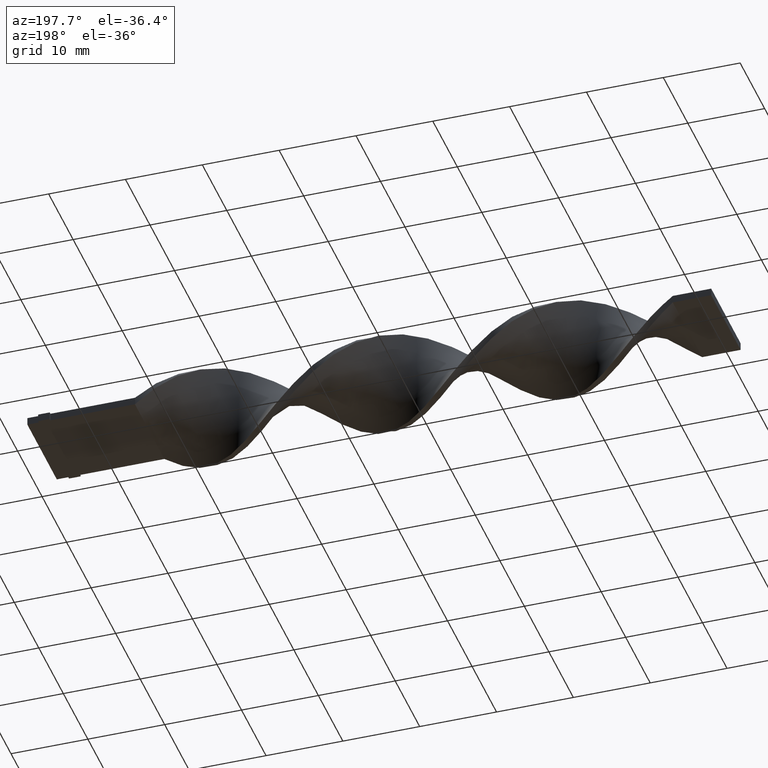
[diagram: clean part render]
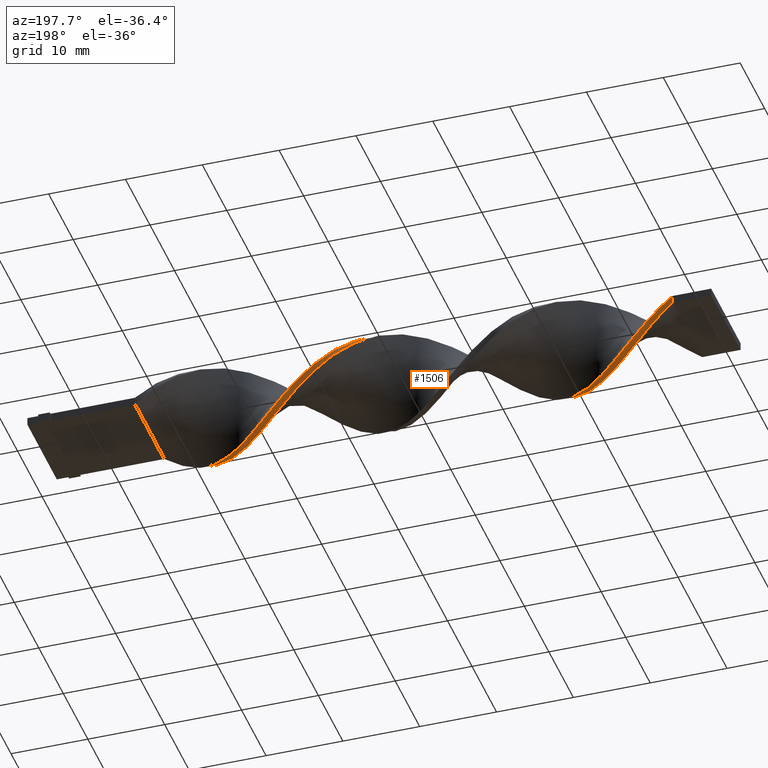
[diagram: same view with one face highlighted and labeled with its STEP entity id]
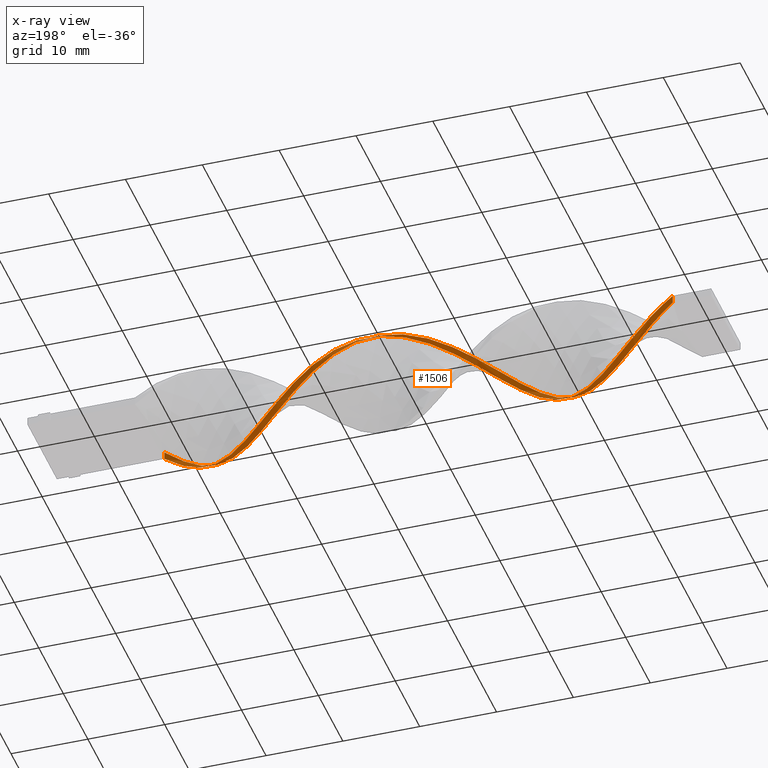
[diagram: x-ray of the same camera — body ghosted, the highlighted face saturated]
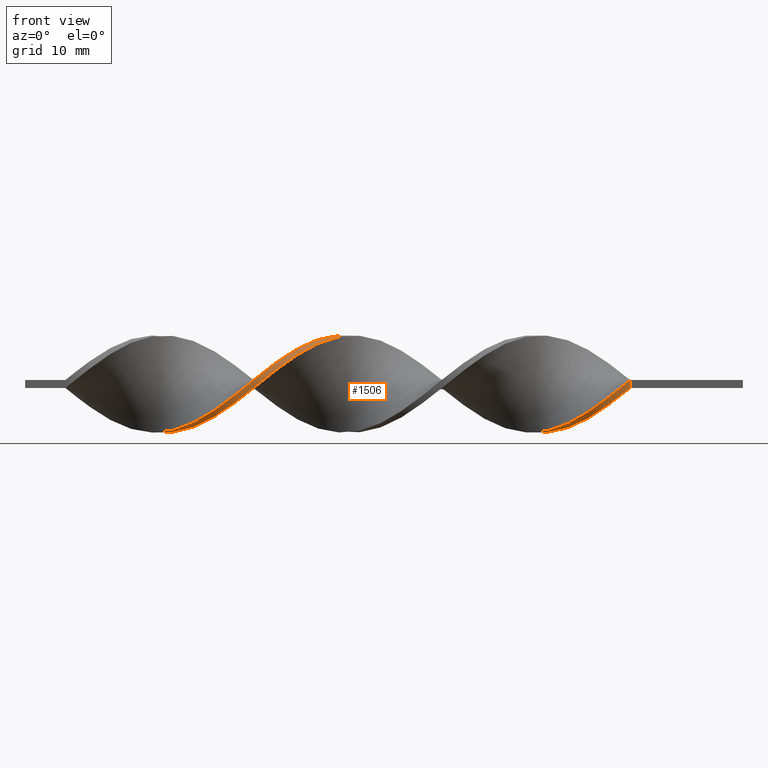
[diagram: same view with one face highlighted and labeled with its STEP entity id]
A machine part, auxiliary view. The second image highlights one B-rep face of the part: STEP entity #1506.
The next image is the same camera in x-ray: the body ghosted, the highlighted face saturated — about 3% of this face is hidden behind the body in this view.
A second angle (front view) of the same face is appended — the face is thin or edge-on in the first view.
In plain terms, the highlighted face is a freeform B-spline surface patch.
Its self-contained STEP definition (entity closure, byte-faithful):
#3 = CARTESIAN_POINT ( 'NONE',  ( -24.76923076923076650, -1.219574518580968547, -5.895984904460662257 ) ) ;
#9 = EDGE_LOOP ( 'NONE', ( #282, #1253, #107, #892 ) ) ;
#27 = CARTESIAN_POINT ( 'NONE',  ( -47.20512820512820440, 1.935476698729087230, 5.747901747727229171 ) ) ;
#34 = CARTESIAN_POINT ( 'NONE',  ( -26.56410256410256210, 0.2268656444829082741, -6.016521584715985860 ) ) ;
#45 = CARTESIAN_POINT ( 'NONE',  ( -25.66666666666666785, -0.5036723384328438691, -6.044068061194097119 ) ) ;
#49 = CARTESIAN_POINT ( 'NONE',  ( -49.00000000000000711, -0.5036723384328423148, 6.044068061194097119 ) ) ;
#55 = CARTESIAN_POINT ( 'NONE',  ( -61.56410256410256920, -6.060710991611131249, -0.2285318993335631599 ) ) ;
#59 = CARTESIAN_POINT ( 'NONE',  ( -21.17948717948717885, -2.996896547440109693, -5.221935568727515964 ) ) ;
#67 = CARTESIAN_POINT ( 'NONE',  ( -37.33333333333332860, 5.999999999999998224, 0.4999999999999992784 ) ) ;
#72 = CARTESIAN_POINT ( 'NONE',  ( -40.92307692307691980, 5.080374567897373517, 3.231067045089215828 ) ) ;
#75 = CARTESIAN_POINT ( 'NONE',  ( -43.61538461538461320, 3.630954320453864792, 4.858046446425391629 ) ) ;
#82 = CARTESIAN_POINT ( 'NONE',  ( -24.76923076923076650, -1.219574518580968547, -5.895984904460662257 ) ) ;
#86 = CARTESIAN_POINT ( 'NONE',  ( -41.82051282051281760, 4.688051999358552990, 3.847936200635249993 ) ) ;
#89 = CARTESIAN_POINT ( 'NONE',  ( -75.02564102564102200, 2.595137443597917759, -5.432795012591221884 ) ) ;
#92 = CARTESIAN_POINT ( 'NONE',  ( -38.23076923076922640, 6.060710991611128584, 0.2285318993335618554 ) ) ;
#94 = CARTESIAN_POINT ( 'NONE',  ( -75.92307692307693401, 2.362838774426346156, -5.585824691029640299 ) ) ;
#98 = CARTESIAN_POINT ( 'NONE',  ( -82.20512820512820440, 5.945308736700089192, -0.9504230770123227590 ) ) ;
#101 = CARTESIAN_POINT ( 'NONE',  ( -57.97435897435897090, -5.472697136436198484, 2.614197889543184772 ) ) ;
#106 = CARTESIAN_POINT ( 'NONE',  ( -50.79487179487178850, -1.935476698729088785, 5.747901747727230060 ) ) ;
#107 = ORIENTED_EDGE ( 'NONE', *, *, #1176, .F. ) ;
#114 = CARTESIAN_POINT ( 'NONE',  ( -46.30769230769230660, 2.595137443597920424, 5.432795012591220107 ) ) ;
#118 = CARTESIAN_POINT ( 'NONE',  ( -21.17948717948717885, -3.819880413333765823, -4.653870821996360263 ) ) ;
#121 = CARTESIAN_POINT ( 'NONE',  ( -49.89743589743589069, -0.2268656444829090235, 6.016521584715984972 ) ) ;
#123 = CARTESIAN_POINT ( 'NONE',  ( -66.05128205128204399, -4.159503159906210890, -4.352991323530321033 ) ) ;
#126 = CARTESIAN_POINT ( 'NONE',  ( -83.10256410256410220, 5.939289008388867863, -1.228531899333566102 ) ) ;
#132 = CARTESIAN_POINT ( 'NONE',  ( -71.43589743589743080, -1.219574518580968547, -5.895984904460662257 ) ) ;
#138 = CARTESIAN_POINT ( 'NONE',  ( -84.00000000000000000, 5.999999999999998224, 0.4999999999999992784 ) ) ;
#142 = EDGE_CURVE ( 'NONE', #1331, #1131, #1358, .T. ) ;
#145 = CARTESIAN_POINT ( 'NONE',  ( -22.97435897435897090, -2.595137443597924420, -5.432795012591220107 ) ) ;
#152 = CARTESIAN_POINT ( 'NONE',  ( -28.35897435897435770, 1.660121200912503259, -5.787399899633756561 ) ) ;
#157 = CARTESIAN_POINT ( 'NONE',  ( -46.30769230769230660, 1.660121200912505923, 5.787399899633756561 ) ) ;
#162 = CARTESIAN_POINT ( 'NONE',  ( -13.99999999999999822, -6.000000000000001776, 0.5000000000000000000 ) ) ;
#165 = CARTESIAN_POINT ( 'NONE',  ( -40.92307692307691980, 5.080374567897373517, 3.231067045089215828 ) ) ;
#167 = VERTEX_POINT ( 'NONE', #451 ) ;
#172 = CARTESIAN_POINT ( 'NONE',  ( -20.28205128205128460, -4.384962638200775586, -4.190053366537506818 ) ) ;
#176 = FACE_OUTER_BOUND ( 'NONE', #9, .T. ) ;
#179 = CARTESIAN_POINT ( 'NONE',  ( -13.99999999999999645, -6.000000000000001776, 0.5000000000000000000 ) ) ;
#183 = CARTESIAN_POINT ( 'NONE',  ( -78.61538461538461320, 4.159503159906205561, -4.352991323530322809 ) ) ;
#184 = CARTESIAN_POINT ( 'NONE',  ( -27.46153846153846345, 1.935476698729087008, -5.747901747727229171 ) ) ;
#186 = CARTESIAN_POINT ( 'NONE',  ( -29.25641025641025905, 3.254798188466751618, -5.117688277455213708 ) ) ;
#188 = CARTESIAN_POINT ( 'NONE',  ( -84.00000000000000000, 5.999999999999998224, -0.5000000000000007772 ) ) ;
#191 = CARTESIAN_POINT ( 'NONE',  ( -73.23076923076924061, 0.2268656444829082741, -6.016521584715985860 ) ) ;
#199 = CARTESIAN_POINT ( 'NONE',  ( -80.41025641025640880, 5.080374567897372629, -3.231067045089216716 ) ) ;
#205 = CARTESIAN_POINT ( 'NONE',  ( -58.87179487179486870, -5.945308736700091856, 0.9504230770123260896 ) ) ;
#207 = CARTESIAN_POINT ( 'NONE',  ( -23.87179487179487580, -1.935476698729091671, -5.747901747727228283 ) ) ;
#211 = CARTESIAN_POINT ( 'NONE',  ( -34.64102564102564230, 5.829906481789050687, -1.672314254691079638 ) ) ;
#215 = CARTESIAN_POINT ( 'NONE',  ( -54.38461538461538680, -4.384962638200770257, 4.190053366537511259 ) ) ;
#221 = CARTESIAN_POINT ( 'NONE',  ( -71.43589743589743080, -0.2268656444829144359, -6.016521584715985860 ) ) ;
#235 = CARTESIAN_POINT ( 'NONE',  ( -40.02564102564102200, 5.829906481789052464, 1.672314254691075419 ) ) ;
#239 = CARTESIAN_POINT ( 'NONE',  ( -14.89743589743589602, -6.060710991611131249, -0.2285318993335631599 ) ) ;
#241 = CARTESIAN_POINT ( 'NONE',  ( -47.20512820512820440, 1.935476698729087452, 5.747901747727229171 ) ) ;
#244 = CARTESIAN_POINT ( 'NONE',  ( -84.00000000000000000, 5.999999999999998224, 0.4999999999999992784 ) ) ;
#247 = CARTESIAN_POINT ( 'NONE',  ( -39.12820512820512420, 5.945308736700090080, 0.9504230770123185401 ) ) ;
#250 = CARTESIAN_POINT ( 'NONE',  ( -64.25641025641024839, -5.545097739941144965, -2.345611019436005584 ) ) ;
#253 = CARTESIAN_POINT ( 'NONE',  ( -54.38461538461538680, -4.384962638200771146, 4.190053366537511259 ) ) ;
#257 = CARTESIAN_POINT ( 'NONE',  ( -72.33333333333332860, -0.5036723384328438691, -6.044068061194097119 ) ) ;
#268 = CARTESIAN_POINT ( 'NONE',  ( -84.00000000000000000, 5.999999999999998224, -0.5000000000000007772 ) ) ;
#273 = CARTESIAN_POINT ( 'NONE',  ( -54.38461538461538680, -3.630954320453861683, 4.858046446425396070 ) ) ;
#279 = CARTESIAN_POINT ( 'NONE',  ( -37.33333333333332860, 5.999999999999998224, -0.5000000000000007772 ) ) ;
#281 = CARTESIAN_POINT ( 'NONE',  ( -40.02564102564102200, 5.472697136436196708, 2.614197889543179887 ) ) ;
#282 = ORIENTED_EDGE ( 'NONE', *, *, #142, .F. ) ;
#289 = CARTESIAN_POINT ( 'NONE',  ( -29.25641025641025905, 2.362838774426346156, -5.585824691029640299 ) ) ;
#308 = CARTESIAN_POINT ( 'NONE',  ( -20.28205128205128460, -3.630954320453867457, -4.858046446425393405 ) ) ;
#310 = CARTESIAN_POINT ( 'NONE',  ( -39.12820512820512420, 5.705993072412532285, 1.921364894438370552 ) ) ;
#312 = CARTESIAN_POINT ( 'NONE',  ( -19.38461538461538325, -4.822625818147006527, -3.604480575359219952 ) ) ;
#315 = CARTESIAN_POINT ( 'NONE',  ( -71.43589743589743080, -1.219574518580968547, -5.895984904460662257 ) ) ;
#317 = CARTESIAN_POINT ( 'NONE',  ( -31.05128205128205465, 4.384962638200770257, -4.190053366537507706 ) ) ;
#328 = CARTESIAN_POINT ( 'NONE',  ( -22.97435897435897090, -1.660121200912509698, -5.787399899633756561 ) ) ;
#336 = CARTESIAN_POINT ( 'NONE',  ( -50.79487179487178850, -1.935476698729089007, 5.747901747727230060 ) ) ;
#348 = CARTESIAN_POINT ( 'NONE',  ( -31.05128205128205465, 3.630954320453861239, -4.858046446425394294 ) ) ;
#351 = CARTESIAN_POINT ( 'NONE',  ( -69.64102564102564941, -1.660121200912509698, -5.787399899633756561 ) ) ;
#355 = CARTESIAN_POINT ( 'NONE',  ( -36.43589743589743790, 5.939289008388867863, -1.228531899333566102 ) ) ;
#360 = CARTESIAN_POINT ( 'NONE',  ( -60.66666666666666430, -6.000000000000001776, -0.5000000000000000000 ) ) ;
#362 = CARTESIAN_POINT ( 'NONE',  ( -34.64102564102564230, 5.472697136436194931, -2.614197889543184328 ) ) ;
#365 = CARTESIAN_POINT ( 'NONE',  ( -74.12820512820510999, 1.935476698729087008, -5.747901747727229171 ) ) ;
#366 = CARTESIAN_POINT ( 'NONE',  ( -44.51282051282051100, 3.819880413333761826, 4.653870821996360263 ) ) ;
#368 = CARTESIAN_POINT ( 'NONE',  ( -74.12820512820510999, 0.9574036273986619161, -5.988975108237873712 ) ) ;
#372 = CARTESIAN_POINT ( 'NONE',  ( -56.17948717948717530, -5.260288998093236579, 3.018907784180935749 ) ) ;
#382 = CARTESIAN_POINT ( 'NONE',  ( -75.92307692307691980, 2.362838774426345712, -5.585824691029639411 ) ) ;
#394 = CARTESIAN_POINT ( 'NONE',  ( -57.97435897435897090, -5.472697136436198484, 2.614197889543184772 ) ) ;
#402 = CARTESIAN_POINT ( 'NONE',  ( -43.61538461538461320, 4.384962638200772034, 4.190053366537505042 ) ) ;
#410 = CARTESIAN_POINT ( 'NONE',  ( -16.69230769230769695, -5.829906481789053352, -1.672314254691077640 ) ) ;
#413 = CARTESIAN_POINT ( 'NONE',  ( -31.94871794871794535, 4.822625818147001198, -3.604480575359222172 ) ) ;
#423 = CARTESIAN_POINT ( 'NONE',  ( -28.35897435897435770, 2.595137443597917759, -5.432795012591221884 ) ) ;
#432 = CARTESIAN_POINT ( 'NONE',  ( -35.53846153846153300, 5.945308736700089192, -0.9504230770123227590 ) ) ;
#440 = CARTESIAN_POINT ( 'NONE',  ( -45.41025641025640880, 2.362838774426350152, 5.585824691029637634 ) ) ;
#442 = CARTESIAN_POINT ( 'NONE',  ( -18.48717948717948545, -4.688051999358555655, -3.847936200635250437 ) ) ;
#448 = CARTESIAN_POINT ( 'NONE',  ( -81.30769230769233502, 5.472697136436194931, -2.614197889543184328 ) ) ;
#449 = CARTESIAN_POINT ( 'NONE',  ( -29.25641025641025905, 3.254798188466751174, -5.117688277455213708 ) ) ;
#451 = CARTESIAN_POINT ( 'NONE',  ( -84.00000000000000000, 5.999999999999998224, 0.4999999999999992784 ) ) ;
#452 = CARTESIAN_POINT ( 'NONE',  ( -72.33333333333332860, 0.5036723384328392061, -6.044068061194097119 ) ) ;
#454 = CARTESIAN_POINT ( 'NONE',  ( -52.58974358974359120, -2.362838774426347488, 5.585824691029640299 ) ) ;
#460 = CARTESIAN_POINT ( 'NONE',  ( -49.00000000000000000, -0.5036723384328423148, 6.044068061194097119 ) ) ;
#463 = CARTESIAN_POINT ( 'NONE',  ( -76.82051282051281760, 3.819880413333760494, -4.653870821996361151 ) ) ;
#465 = CARTESIAN_POINT ( 'NONE',  ( -57.07692307692307310, -5.080374567897375293, 3.231067045089219825 ) ) ;
#471 = CARTESIAN_POINT ( 'NONE',  ( -72.33333333333332860, 0.5036723384328392061, -6.044068061194097119 ) ) ;
#474 = CARTESIAN_POINT ( 'NONE',  ( -62.46153846153845990, -5.705993072412535838, -1.921364894438372550 ) ) ;
#476 = CARTESIAN_POINT ( 'NONE',  ( -53.48717948717948900, -2.996896547440107472, 5.221935568727517740 ) ) ;
#488 = CARTESIAN_POINT ( 'NONE',  ( -66.94871794871794179, -3.630954320453867457, -4.858046446425393405 ) ) ;
#497 = B_SPLINE_CURVE_WITH_KNOTS ( 'NONE', 3,
 ( #138, #1124, #1375, #268 ),
 .UNSPECIFIED., .F., .F.,
 ( 4, 4 ),
 ( 0.000000000000000000, 1.000000000000000000 ),
 .UNSPECIFIED. ) ;
#499 = CARTESIAN_POINT ( 'NONE',  ( -40.92307692307691980, 5.545097739941142301, 2.345611019436005584 ) ) ;
#506 = CARTESIAN_POINT ( 'NONE',  ( -59.76923076923076650, -5.939289008388871416, 1.228531899333566768 ) ) ;
#526 = CARTESIAN_POINT ( 'NONE',  ( -58.87179487179486870, -5.705993072412533174, 1.921364894438377879 ) ) ;
#529 = CARTESIAN_POINT ( 'NONE',  ( -13.99999999999999645, -6.000000000000001776, 0.5000000000000000000 ) ) ;
#533 = CARTESIAN_POINT ( 'NONE',  ( -62.46153846153845990, -5.945308736700092744, -0.9504230770123205385 ) ) ;
#536 = CARTESIAN_POINT ( 'NONE',  ( -22.07692307692308376, -2.362838774426351041, -5.585824691029640299 ) ) ;
#542 = CARTESIAN_POINT ( 'NONE',  ( -33.74358974358974450, 5.080374567897372629, -3.231067045089216716 ) ) ;
#543 =( BOUNDED_CURVE ( )  B_SPLINE_CURVE ( 2, ( #179, #1432, #954, #692, #1186, #1442, #312, #1071, #1572, #1449, #1332, #207, #82, #586, #1532, #746, #1361, #615, #1227, #348, #1081, #1476, #1106, #362, #724, #355, #733, #92, #1218, #235, #1608, #1490, #858, #1368, #964, #1242, #114, #241, #753, #1097, #121, #1583, #596, #454, #476, #606, #1460, #1592, #465, #101, #982, #506, #1496, #1009, #1146, #1500, #250, #1395, #770, #1275, #1382, #1119, #1138, #1014, #132, #257, #1023, #368, #908, #382, #878, #764, #1000, #1132, #1254, #1522, #1265, #126, #1389 ),
 .UNSPECIFIED., .F., .T. ) 
 B_SPLINE_CURVE_WITH_KNOTS ( ( 3, 2, 2, 2, 2, 2, 2, 2, 2, 2, 2, 2, 2, 2, 2, 2, 2, 2, 2, 2, 2, 2, 2, 2, 2, 2, 2, 2, 2, 2, 2, 2, 2, 2, 2, 2, 2, 2, 2, 3 ),
 ( 0.000000000000000000, 0.01923076923076923184, 0.03846153846153846367, 0.05769230769230768857, 0.07692307692307692735, 0.09615384615384615918, 0.1153846153846153771, 0.1346153846153846090, 0.1538461538461538547, 0.1730769230769230449, 0.1923076923076923184, 0.2115384615384615363, 0.2307692307692307543, 0.2500000000000000000, 0.2692307692307692180, 0.2884615384615384359, 0.3076923076923077094, 0.3269230769230769273, 0.3461538461538460898, 0.3653846153846153633, 0.3846153846153846367, 0.4038461538461539102, 0.4230769230769230727, 0.4423076923076922906, 0.4615384615384615086, 0.4807692307692307820, 0.5000000000000000000, 0.5192307692307692735, 0.5384615384615384359, 0.5576923076923077094, 0.5769230769230768718, 0.5961538461538461453, 0.6153846153846154188, 0.6346153846153845812, 0.6538461538461538547, 0.6730769230769230171, 0.6923076923076921796, 0.7115384615384615641, 0.7307692307692307265, 0.7500000000000000000 ),
 .UNSPECIFIED. ) 
 CURVE ( )  GEOMETRIC_REPRESENTATION_ITEM ( )  RATIONAL_B_SPLINE_CURVE ( ( 1.000000000000000000, 0.9927088740980539727, 1.000000000000000000, 0.9927088740980539727, 1.000000000000000000, 0.9927088740980539727, 1.000000000000000000, 0.9927088740980539727, 1.000000000000000000, 0.9927088740980539727, 1.000000000000000000, 0.9927088740980539727, 1.000000000000000000, 0.9927088740980539727, 1.000000000000000000, 0.9927088740980539727, 1.000000000000000000, 0.9927088740980539727, 1.000000000000000000, 0.9927088740980539727, 1.000000000000000000, 0.9927088740980539727, 1.000000000000000000, 0.9927088740980539727, 1.000000000000000000, 0.9927088740980539727, 1.000000000000000000, 0.9927088740980539727, 1.000000000000000000, 0.9927088740980539727, 1.000000000000000000, 0.9927088740980539727, 1.000000000000000000, 0.9927088740980539727, 1.000000000000000000, 0.9927088740980539727, 1.000000000000000000, 0.9927088740980539727, 1.000000000000000000, 0.9927088740980539727, 1.000000000000000000, 0.9927088740980539727, 1.000000000000000000, 0.9927088740980539727, 1.000000000000000000, 0.9927088740980539727, 1.000000000000000000, 0.9927088740980539727, 1.000000000000000000, 0.9927088740980539727, 1.000000000000000000, 0.9927088740980539727, 1.000000000000000000, 0.9927088740980539727, 1.000000000000000000, 0.9927088740980539727, 1.000000000000000000, 0.9927088740980539727, 1.000000000000000000, 0.9927088740980539727, 1.000000000000000000, 0.9927088740980539727, 1.000000000000000000, 0.9927088740980539727, 1.000000000000000000, 0.9927088740980539727, 1.000000000000000000, 0.9927088740980539727, 1.000000000000000000, 0.9927088740980539727, 1.000000000000000000, 0.9927088740980539727, 1.000000000000000000, 0.9927088740980539727, 1.000000000000000000, 0.9927088740980539727, 1.000000000000000000, 0.9927088740980539727, 1.000000000000000000 ) ) 
 REPRESENTATION_ITEM ( '' )  );
#545 = CARTESIAN_POINT ( 'NONE',  ( -41.82051282051281760, 4.688051999358552990, 3.847936200635249993 ) ) ;
#552 = CARTESIAN_POINT ( 'NONE',  ( -45.41025641025640880, 3.254798188466754727, 5.117688277455211932 ) ) ;
#554 = CARTESIAN_POINT ( 'NONE',  ( -22.97435897435897090, -1.660121200912509698, -5.787399899633756561 ) ) ;
#570 = CARTESIAN_POINT ( 'NONE',  ( -79.51282051282051100, 4.688051999358551214, -3.847936200635250437 ) ) ;
#575 = CARTESIAN_POINT ( 'NONE',  ( -16.69230769230769695, -5.472697136436199372, -2.614197889543182107 ) ) ;
#580 = CARTESIAN_POINT ( 'NONE',  ( -74.12820512820512420, 0.9574036273986619161, -5.988975108237873712 ) ) ;
#584 = CARTESIAN_POINT ( 'NONE',  ( -55.28205128205128460, -4.822625818147003862, 3.604480575359223060 ) ) ;
#586 = CARTESIAN_POINT ( 'NONE',  ( -25.66666666666666785, -0.5036723384328438691, -6.044068061194097119 ) ) ;
#591 = CARTESIAN_POINT ( 'NONE',  ( -48.10256410256410220, 0.2268656444829123819, 6.016521584715985860 ) ) ;
#594 = CARTESIAN_POINT ( 'NONE',  ( -75.92307692307693401, 3.254798188466751618, -5.117688277455213708 ) ) ;
#596 = CARTESIAN_POINT ( 'NONE',  ( -51.69230769230769340, -1.660121200912508588, 5.787399899633757450 ) ) ;
#600 = CARTESIAN_POINT ( 'NONE',  ( -60.66666666666666430, -6.000000000000001776, -0.5000000000000000000 ) ) ;
#606 = CARTESIAN_POINT ( 'NONE',  ( -54.38461538461538680, -3.630954320453861683, 4.858046446425396070 ) ) ;
#610 = CARTESIAN_POINT ( 'NONE',  ( -57.07692307692307310, -5.545097739941144077, 2.345611019436010469 ) ) ;
#613 = CARTESIAN_POINT ( 'NONE',  ( -51.69230769230769340, -2.595137443597923088, 5.432795012591220996 ) ) ;
#615 = CARTESIAN_POINT ( 'NONE',  ( -29.25641025641025905, 2.362838774426345712, -5.585824691029639411 ) ) ;
#618 = CARTESIAN_POINT ( 'NONE',  ( -79.51282051282051100, 5.260288998093233026, -3.018907784180935305 ) ) ;
#627 = CARTESIAN_POINT ( 'NONE',  ( -38.23076923076922640, 6.060710991611127696, 0.2285318993335618554 ) ) ;
#648 = CARTESIAN_POINT ( 'NONE',  ( -60.66666666666666430, -6.000000000000001776, 0.5000000000000000000 ) ) ;
#656 = CARTESIAN_POINT ( 'NONE',  ( -31.05128205128205821, 3.630954320453861239, -4.858046446425394294 ) ) ;
#659 = CARTESIAN_POINT ( 'NONE',  ( -47.20512820512820440, 0.9574036273986621381, 5.988975108237873712 ) ) ;
#665 = CARTESIAN_POINT ( 'NONE',  ( -22.07692307692308376, -3.254798188466756503, -5.117688277455213708 ) ) ;
#670 = CARTESIAN_POINT ( 'NONE',  ( -42.71794871794872250, 4.159503159906208225, 4.352991323530320145 ) ) ;
#677 = CARTESIAN_POINT ( 'NONE',  ( -36.43589743589743790, 5.939289008388867863, -1.228531899333566324 ) ) ;
#688 = CARTESIAN_POINT ( 'NONE',  ( -38.23076923076922640, 5.939289008388867863, 1.228531899333561661 ) ) ;
#690 = CARTESIAN_POINT ( 'NONE',  ( -31.05128205128205821, 4.384962638200769369, -4.190053366537507706 ) ) ;
#692 = CARTESIAN_POINT ( 'NONE',  ( -16.69230769230769340, -5.829906481789053352, -1.672314254691077418 ) ) ;
#697 = CARTESIAN_POINT ( 'NONE',  ( -75.02564102564102200, 1.660121200912503259, -5.787399899633756561 ) ) ;
#698 = CARTESIAN_POINT ( 'NONE',  ( -40.02564102564102200, 5.472697136436196708, 2.614197889543179887 ) ) ;
#711 = CARTESIAN_POINT ( 'NONE',  ( -67.84615384615385381, -2.996896547440109693, -5.221935568727515964 ) ) ;
#718 = CARTESIAN_POINT ( 'NONE',  ( -36.43589743589743790, 6.060710991611128584, -0.2285318993335658799 ) ) ;
#722 = CARTESIAN_POINT ( 'NONE',  ( -57.07692307692307310, -5.545097739941144077, 2.345611019436010469 ) ) ;
#724 = CARTESIAN_POINT ( 'NONE',  ( -35.53846153846153300, 5.705993072412531397, -1.921364894438374549 ) ) ;
#727 = CARTESIAN_POINT ( 'NONE',  ( -39.12820512820512420, 5.705993072412532285, 1.921364894438370552 ) ) ;
#729 = CARTESIAN_POINT ( 'NONE',  ( -80.41025641025640880, 5.545097739941141413, -2.345611019436007361 ) ) ;
#732 = EDGE_CURVE ( 'NONE', #1131, #167, #1568, .T. ) ;
#733 = CARTESIAN_POINT ( 'NONE',  ( -37.33333333333332860, 5.999999999999998224, -0.5000000000000007772 ) ) ;
#736 = CARTESIAN_POINT ( 'NONE',  ( -61.56410256410256920, -5.939289008388871416, -1.228531899333562993 ) ) ;
#741 = CARTESIAN_POINT ( 'NONE',  ( -75.92307692307691980, 3.254798188466751174, -5.117688277455213708 ) ) ;
#744 = CARTESIAN_POINT ( 'NONE',  ( -64.25641025641024839, -5.080374567897377069, -3.231067045089215828 ) ) ;
#746 = CARTESIAN_POINT ( 'NONE',  ( -27.46153846153846345, 0.9574036273986619161, -5.988975108237873712 ) ) ;
#751 = CARTESIAN_POINT ( 'NONE',  ( -30.15384615384615330, 2.996896547440103920, -5.221935568727516852 ) ) ;
#753 = CARTESIAN_POINT ( 'NONE',  ( -48.10256410256410220, 1.219574518580966549, 5.895984904460662257 ) ) ;
#761 = CARTESIAN_POINT ( 'NONE',  ( -59.76923076923076650, -6.060710991611132137, 0.2285318993335666293 ) ) ;
#764 = CARTESIAN_POINT ( 'NONE',  ( -77.71794871794874382, 3.630954320453861239, -4.858046446425394294 ) ) ;
#770 = CARTESIAN_POINT ( 'NONE',  ( -66.05128205128204399, -4.822625818147006527, -3.604480575359219952 ) ) ;
#775 = CARTESIAN_POINT ( 'NONE',  ( -51.69230769230769340, -1.660121200912508588, 5.787399899633757450 ) ) ;
#782 = CARTESIAN_POINT ( 'NONE',  ( -66.94871794871794179, -4.384962638200775586, -4.190053366537506818 ) ) ;
#789 = CARTESIAN_POINT ( 'NONE',  ( -56.17948717948717530, -4.688051999358554767, 3.847936200635250881 ) ) ;
#792 = CARTESIAN_POINT ( 'NONE',  ( -23.87179487179487580, -0.9574036273986665790, -5.988975108237873712 ) ) ;
#799 = CARTESIAN_POINT ( 'NONE',  ( -52.58974358974358410, -2.362838774426347932, 5.585824691029640299 ) ) ;
#810 = CARTESIAN_POINT ( 'NONE',  ( -13.99999999999999645, -6.000000000000001776, -0.5000000000000000000 ) ) ;
#812 = CARTESIAN_POINT ( 'NONE',  ( -25.66666666666666785, 0.5036723384328392061, -6.044068061194097119 ) ) ;
#820 = CARTESIAN_POINT ( 'NONE',  ( -37.33333333333332860, 5.999999999999998224, 0.4999999999999992784 ) ) ;
#827 = CARTESIAN_POINT ( 'NONE',  ( -15.79487179487179205, -5.705993072412535838, -1.921364894438372550 ) ) ;
#830 = CARTESIAN_POINT ( 'NONE',  ( -32.84615384615384670, 5.260288998093233026, -3.018907784180935749 ) ) ;
#839 = CARTESIAN_POINT ( 'NONE',  ( -24.76923076923076650, -0.2268656444829144359, -6.016521584715985860 ) ) ;
#845 = CARTESIAN_POINT ( 'NONE',  ( -51.69230769230769340, -2.595137443597923088, 5.432795012591220996 ) ) ;
#849 = CARTESIAN_POINT ( 'NONE',  ( -78.61538461538461320, 4.822625818147001198, -3.604480575359222172 ) ) ;
#853 = CARTESIAN_POINT ( 'NONE',  ( -70.53846153846153300, -0.9574036273986665790, -5.988975108237874601 ) ) ;
#856 = CARTESIAN_POINT ( 'NONE',  ( -53.48717948717948900, -3.819880413333763602, 4.653870821996362039 ) ) ;
#858 = CARTESIAN_POINT ( 'NONE',  ( -42.71794871794872250, 4.822625818147003862, 3.604480575359219063 ) ) ;
#864 = CARTESIAN_POINT ( 'NONE',  ( -59.76923076923077360, -6.060710991611131249, 0.2285318993335666293 ) ) ;
#870 = CARTESIAN_POINT ( 'NONE',  ( -68.74358974358973740, -3.254798188466756503, -5.117688277455213708 ) ) ;
#874 = CARTESIAN_POINT ( 'NONE',  ( -65.15384615384614619, -4.688051999358555655, -3.847936200635250437 ) ) ;
#876 = CARTESIAN_POINT ( 'NONE',  ( -46.30769230769230660, 2.595137443597920424, 5.432795012591220107 ) ) ;
#878 = CARTESIAN_POINT ( 'NONE',  ( -76.82051282051281760, 2.996896547440103920, -5.221935568727516852 ) ) ;
#881 =( BOUNDED_SURFACE ( )  B_SPLINE_SURFACE ( 1, 2, ( 
 ( #1060, #1174, #1420, #575, #917, #442, #1549, #1032, #59, #536, #554, #792, #1069, #812, #1290, #935, #423, #186, #1540, #690, #413, #830, #1184, #1192, #1410, #1431, #67, #1561, #310, #281, #165, #545, #670, #75, #1571, #952, #157, #659, #1164, #49, #1041, #106, #613, #1599, #856, #215, #584, #1480, #722, #1353, #205, #864, #360, #1203, #474, #1214, #744, #1111, #1614, #488, #711, #1488, #1581, #974, #221, #452, #961, #1457, #89, #594, #463, #1467, #849, #1346, #729, #1224, #98, #1287, #1048 ),
 ( #162, #239, #1159, #410, #1366, #1278, #914, #172, #118, #665, #145, #1494, #3, #45, #34, #924, #152, #289, #751, #656, #1028, #1297, #542, #904, #1150, #677, #279, #627, #247, #1117, #499, #1417, #997, #402, #366, #552, #876, #27, #1247, #1038, #1526, #1373, #775, #799, #1408, #273, #1271, #789, #1537, #394, #526, #1171, #648, #55, #533, #1142, #1019, #1519, #1400, #782, #1546, #870, #1556, #1198, #315, #1576, #191, #580, #697, #94, #1075, #1586, #183, #570, #199, #448, #1567, #1309, #1057 ) ),
 .UNSPECIFIED., .F., .F., .F. ) 
 B_SPLINE_SURFACE_WITH_KNOTS ( ( 2, 2 ),
 ( 3, 2, 2, 2, 2, 2, 2, 2, 2, 2, 2, 2, 2, 2, 2, 2, 2, 2, 2, 2, 2, 2, 2, 2, 2, 2, 2, 2, 2, 2, 2, 2, 2, 2, 2, 2, 2, 2, 2, 3 ),
 ( 0.000000000000000000, 1.000000000000000000 ),
 ( 0.000000000000000000, 0.01923076923076923184, 0.03846153846153846367, 0.05769230769230769551, 0.07692307692307692735, 0.09615384615384615918, 0.1153846153846153910, 0.1346153846153846090, 0.1538461538461538547, 0.1730769230769230727, 0.1923076923076923184, 0.2115384615384615363, 0.2307692307692307820, 0.2500000000000000000, 0.2692307692307692180, 0.2884615384615384359, 0.3076923076923077094, 0.3269230769230769273, 0.3461538461538461453, 0.3653846153846153633, 0.3846153846153846367, 0.4038461538461538547, 0.4230769230769230727, 0.4423076923076922906, 0.4615384615384615641, 0.4807692307692307820, 0.5000000000000000000, 0.5192307692307692735, 0.5384615384615384359, 0.5576923076923077094, 0.5769230769230768718, 0.5961538461538461453, 0.6153846153846154188, 0.6346153846153845812, 0.6538461538461538547, 0.6730769230769231282, 0.6923076923076922906, 0.7115384615384615641, 0.7307692307692307265, 0.7500000000000000000 ),
 .UNSPECIFIED. ) 
 GEOMETRIC_REPRESENTATION_ITEM ( )  RATIONAL_B_SPLINE_SURFACE ( (
 ( 1.000000000000000000, 0.9927088740980539727, 1.000000000000000000, 0.9927088740980539727, 1.000000000000000000, 0.9927088740980539727, 1.000000000000000000, 0.9927088740980539727, 1.000000000000000000, 0.9927088740980539727, 1.000000000000000000, 0.9927088740980539727, 1.000000000000000000, 0.9927088740980539727, 1.000000000000000000, 0.9927088740980539727, 1.000000000000000000, 0.9927088740980539727, 1.000000000000000000, 0.9927088740980539727, 1.000000000000000000, 0.9927088740980539727, 1.000000000000000000, 0.9927088740980539727, 1.000000000000000000, 0.9927088740980539727, 1.000000000000000000, 0.9927088740980539727, 1.000000000000000000, 0.9927088740980539727, 1.000000000000000000, 0.9927088740980539727, 1.000000000000000000, 0.9927088740980539727, 1.000000000000000000, 0.9927088740980539727, 1.000000000000000000, 0.9927088740980539727, 1.000000000000000000, 0.9927088740980539727, 1.000000000000000000, 0.9927088740980539727, 1.000000000000000000, 0.9927088740980539727, 1.000000000000000000, 0.9927088740980539727, 1.000000000000000000, 0.9927088740980539727, 1.000000000000000000, 0.9927088740980539727, 1.000000000000000000, 0.9927088740980539727, 1.000000000000000000, 0.9927088740980539727, 1.000000000000000000, 0.9927088740980539727, 1.000000000000000000, 0.9927088740980539727, 1.000000000000000000, 0.9927088740980539727, 1.000000000000000000, 0.9927088740980539727, 1.000000000000000000, 0.9927088740980539727, 1.000000000000000000, 0.9927088740980539727, 1.000000000000000000, 0.9927088740980539727, 1.000000000000000000, 0.9927088740980539727, 1.000000000000000000, 0.9927088740980539727, 1.000000000000000000, 0.9927088740980539727, 1.000000000000000000, 0.9927088740980539727, 1.000000000000000000, 0.9927088740980539727, 1.000000000000000000),
 ( 1.000000000000000000, 0.9927088740980539727, 1.000000000000000000, 0.9927088740980539727, 1.000000000000000000, 0.9927088740980539727, 1.000000000000000000, 0.9927088740980539727, 1.000000000000000000, 0.9927088740980539727, 1.000000000000000000, 0.9927088740980539727, 1.000000000000000000, 0.9927088740980539727, 1.000000000000000000, 0.9927088740980539727, 1.000000000000000000, 0.9927088740980539727, 1.000000000000000000, 0.9927088740980539727, 1.000000000000000000, 0.9927088740980539727, 1.000000000000000000, 0.9927088740980539727, 1.000000000000000000, 0.9927088740980539727, 1.000000000000000000, 0.9927088740980539727, 1.000000000000000000, 0.9927088740980539727, 1.000000000000000000, 0.9927088740980539727, 1.000000000000000000, 0.9927088740980539727, 1.000000000000000000, 0.9927088740980539727, 1.000000000000000000, 0.9927088740980539727, 1.000000000000000000, 0.9927088740980539727, 1.000000000000000000, 0.9927088740980539727, 1.000000000000000000, 0.9927088740980539727, 1.000000000000000000, 0.9927088740980539727, 1.000000000000000000, 0.9927088740980539727, 1.000000000000000000, 0.9927088740980539727, 1.000000000000000000, 0.9927088740980539727, 1.000000000000000000, 0.9927088740980539727, 1.000000000000000000, 0.9927088740980539727, 1.000000000000000000, 0.9927088740980539727, 1.000000000000000000, 0.9927088740980539727, 1.000000000000000000, 0.9927088740980539727, 1.000000000000000000, 0.9927088740980539727, 1.000000000000000000, 0.9927088740980539727, 1.000000000000000000, 0.9927088740980539727, 1.000000000000000000, 0.9927088740980539727, 1.000000000000000000, 0.9927088740980539727, 1.000000000000000000, 0.9927088740980539727, 1.000000000000000000, 0.9927088740980539727, 1.000000000000000000, 0.9927088740980539727, 1.000000000000000000) ) ) 
 REPRESENTATION_ITEM ( '' )  SURFACE ( )  );
#882 = CARTESIAN_POINT ( 'NONE',  ( -58.87179487179486870, -5.945308736700091856, 0.9504230770123260896 ) ) ;
#892 = ORIENTED_EDGE ( 'NONE', *, *, #732, .F. ) ;
#904 = CARTESIAN_POINT ( 'NONE',  ( -34.64102564102564230, 5.472697136436194931, -2.614197889543184328 ) ) ;
#908 = CARTESIAN_POINT ( 'NONE',  ( -75.02564102564102200, 1.660121200912503259, -5.787399899633756561 ) ) ;
#914 = CARTESIAN_POINT ( 'NONE',  ( -19.38461538461538325, -4.822625818147006527, -3.604480575359219952 ) ) ;
#917 = CARTESIAN_POINT ( 'NONE',  ( -17.58974358974358765, -5.080374567897377069, -3.231067045089215828 ) ) ;
#924 = CARTESIAN_POINT ( 'NONE',  ( -27.46153846153846345, 0.9574036273986619161, -5.988975108237873712 ) ) ;
#935 = CARTESIAN_POINT ( 'NONE',  ( -27.46153846153846345, 1.935476698729086786, -5.747901747727229171 ) ) ;
#949 = CARTESIAN_POINT ( 'NONE',  ( -23.87179487179487580, -0.9574036273986665790, -5.988975108237874601 ) ) ;
#952 = CARTESIAN_POINT ( 'NONE',  ( -45.41025641025640880, 2.362838774426350152, 5.585824691029638522 ) ) ;
#954 = CARTESIAN_POINT ( 'NONE',  ( -15.79487179487179205, -5.945308736700092744, -0.9504230770123205385 ) ) ;
#961 = CARTESIAN_POINT ( 'NONE',  ( -73.23076923076924061, 1.219574518580962108, -5.895984904460662257 ) ) ;
#963 = VECTOR ( 'NONE', #1578, 1000.000000000000000 ) ;
#964 = CARTESIAN_POINT ( 'NONE',  ( -44.51282051282051100, 3.819880413333761826, 4.653870821996360263 ) ) ;
#971 = CARTESIAN_POINT ( 'NONE',  ( -49.89743589743589069, -1.219574518580962996, 5.895984904460663145 ) ) ;
#974 = CARTESIAN_POINT ( 'NONE',  ( -70.53846153846153300, -0.9574036273986665790, -5.988975108237873712 ) ) ;
#978 = CARTESIAN_POINT ( 'NONE',  ( -77.71794871794874382, 4.384962638200770257, -4.190053366537507706 ) ) ;
#982 = CARTESIAN_POINT ( 'NONE',  ( -58.87179487179486870, -5.705993072412533174, 1.921364894438377879 ) ) ;
#985 = CARTESIAN_POINT ( 'NONE',  ( -71.43589743589743080, -0.2268656444829144359, -6.016521584715985860 ) ) ;
#991 = CARTESIAN_POINT ( 'NONE',  ( -67.84615384615385381, -2.996896547440109693, -5.221935568727515964 ) ) ;
#997 = CARTESIAN_POINT ( 'NONE',  ( -42.71794871794872250, 4.822625818147003862, 3.604480575359219063 ) ) ;
#1000 = CARTESIAN_POINT ( 'NONE',  ( -78.61538461538461320, 4.159503159906205561, -4.352991323530322809 ) ) ;
#1009 = CARTESIAN_POINT ( 'NONE',  ( -61.56410256410256920, -6.060710991611132137, -0.2285318993335631599 ) ) ;
#1014 = CARTESIAN_POINT ( 'NONE',  ( -70.53846153846153300, -1.935476698729091671, -5.747901747727228283 ) ) ;
#1019 = CARTESIAN_POINT ( 'NONE',  ( -64.25641025641024839, -5.545097739941144965, -2.345611019436005584 ) ) ;
#1023 = CARTESIAN_POINT ( 'NONE',  ( -73.23076923076924061, 0.2268656444829082741, -6.016521584715985860 ) ) ;
#1028 = CARTESIAN_POINT ( 'NONE',  ( -31.94871794871794535, 4.159503159906205561, -4.352991323530322809 ) ) ;
#1032 = CARTESIAN_POINT ( 'NONE',  ( -20.28205128205128460, -3.630954320453867457, -4.858046446425393405 ) ) ;
#1038 = CARTESIAN_POINT ( 'NONE',  ( -49.00000000000000711, 0.5036723384328405384, 6.044068061194097119 ) ) ;
#1041 = CARTESIAN_POINT ( 'NONE',  ( -49.89743589743589069, -1.219574518580962996, 5.895984904460663145 ) ) ;
#1048 = CARTESIAN_POINT ( 'NONE',  ( -84.00000000000000000, 5.999999999999998224, 0.4999999999999992784 ) ) ;
#1049 = CARTESIAN_POINT ( 'NONE',  ( -25.66666666666666785, 0.5036723384328392061, -6.044068061194097119 ) ) ;
#1057 = CARTESIAN_POINT ( 'NONE',  ( -84.00000000000000000, 5.999999999999998224, -0.5000000000000007772 ) ) ;
#1058 = CARTESIAN_POINT ( 'NONE',  ( -19.38461538461538325, -4.159503159906210890, -4.352991323530321033 ) ) ;
#1060 = CARTESIAN_POINT ( 'NONE',  ( -13.99999999999999822, -6.000000000000001776, -0.5000000000000000000 ) ) ;
#1067 = CARTESIAN_POINT ( 'NONE',  ( -17.58974358974358765, -5.080374567897377069, -3.231067045089215828 ) ) ;
#1069 = CARTESIAN_POINT ( 'NONE',  ( -24.76923076923076650, -0.2268656444829144359, -6.016521584715985860 ) ) ;
#1071 = CARTESIAN_POINT ( 'NONE',  ( -20.28205128205128460, -4.384962638200776475, -4.190053366537506818 ) ) ;
#1075 = CARTESIAN_POINT ( 'NONE',  ( -76.82051282051281760, 2.996896547440103920, -5.221935568727516852 ) ) ;
#1076 = CARTESIAN_POINT ( 'NONE',  ( -16.69230769230769340, -5.472697136436199372, -2.614197889543182107 ) ) ;
#1081 = CARTESIAN_POINT ( 'NONE',  ( -31.94871794871794535, 4.159503159906205561, -4.352991323530322809 ) ) ;
#1093 = CARTESIAN_POINT ( 'NONE',  ( -66.94871794871795601, -3.630954320453867457, -4.858046446425393405 ) ) ;
#1096 = VERTEX_POINT ( 'NONE', #188 ) ;
#1097 = CARTESIAN_POINT ( 'NONE',  ( -49.00000000000000000, 0.5036723384328406494, 6.044068061194097119 ) ) ;
#1102 = CARTESIAN_POINT ( 'NONE',  ( -78.61538461538461320, 4.822625818147001198, -3.604480575359222172 ) ) ;
#1106 = CARTESIAN_POINT ( 'NONE',  ( -33.74358974358974450, 5.080374567897372629, -3.231067045089216716 ) ) ;
#1110 = CARTESIAN_POINT ( 'NONE',  ( -53.48717948717948900, -3.819880413333763602, 4.653870821996362039 ) ) ;
#1111 = CARTESIAN_POINT ( 'NONE',  ( -65.15384615384614619, -4.688051999358555655, -3.847936200635250437 ) ) ;
#1117 = CARTESIAN_POINT ( 'NONE',  ( -40.02564102564102200, 5.829906481789052464, 1.672314254691075419 ) ) ;
#1119 = CARTESIAN_POINT ( 'NONE',  ( -68.74358974358973740, -3.254798188466756059, -5.117688277455213708 ) ) ;
#1121 = CARTESIAN_POINT ( 'NONE',  ( -76.82051282051281760, 3.819880413333760494, -4.653870821996361151 ) ) ;
#1124 = CARTESIAN_POINT ( 'NONE',  ( -84.00000000000000000, 5.999999999999998224, 0.1666666666666659358 ) ) ;
#1131 = VERTEX_POINT ( 'NONE', #1423 ) ;
#1132 = CARTESIAN_POINT ( 'NONE',  ( -79.51282051282051100, 4.688051999358551214, -3.847936200635250881 ) ) ;
#1138 = CARTESIAN_POINT ( 'NONE',  ( -69.64102564102564941, -2.595137443597924420, -5.432795012591220107 ) ) ;
#1142 = CARTESIAN_POINT ( 'NONE',  ( -63.35897435897435770, -5.829906481789053352, -1.672314254691077640 ) ) ;
#1143 = EDGE_CURVE ( 'NONE', #1331, #1096, #543, .T. ) ;
#1146 = CARTESIAN_POINT ( 'NONE',  ( -62.46153846153845990, -5.945308736700092744, -0.9504230770123205385 ) ) ;
#1150 = CARTESIAN_POINT ( 'NONE',  ( -35.53846153846153300, 5.705993072412531397, -1.921364894438374549 ) ) ;
#1159 = CARTESIAN_POINT ( 'NONE',  ( -15.79487179487179205, -5.945308736700092744, -0.9504230770123205385 ) ) ;
#1164 = CARTESIAN_POINT ( 'NONE',  ( -48.10256410256410220, 0.2268656444829123819, 6.016521584715985860 ) ) ;
#1171 = CARTESIAN_POINT ( 'NONE',  ( -59.76923076923077360, -5.939289008388871416, 1.228531899333566990 ) ) ;
#1174 = CARTESIAN_POINT ( 'NONE',  ( -14.89743589743589602, -5.939289008388871416, -1.228531899333563215 ) ) ;
#1176 = EDGE_CURVE ( 'NONE', #167, #1096, #497, .T. ) ;
#1182 = CARTESIAN_POINT ( 'NONE',  ( -28.35897435897435770, 2.595137443597917759, -5.432795012591221884 ) ) ;
#1184 = CARTESIAN_POINT ( 'NONE',  ( -33.74358974358974450, 5.545097739941141413, -2.345611019436007361 ) ) ;
#1186 = CARTESIAN_POINT ( 'NONE',  ( -17.58974358974358765, -5.545097739941144965, -2.345611019436005584 ) ) ;
#1190 = CARTESIAN_POINT ( 'NONE',  ( -14.89743589743589602, -5.939289008388871416, -1.228531899333562993 ) ) ;
#1192 = CARTESIAN_POINT ( 'NONE',  ( -34.64102564102564230, 5.829906481789050687, -1.672314254691079860 ) ) ;
#1198 = CARTESIAN_POINT ( 'NONE',  ( -70.53846153846153300, -1.935476698729091671, -5.747901747727228283 ) ) ;
#1199 = CARTESIAN_POINT ( 'NONE',  ( -47.20512820512820440, 0.9574036273986621381, 5.988975108237873712 ) ) ;
#1203 = CARTESIAN_POINT ( 'NONE',  ( -61.56410256410256920, -5.939289008388871416, -1.228531899333563215 ) ) ;
#1211 = CARTESIAN_POINT ( 'NONE',  ( -43.61538461538461320, 3.630954320453864792, 4.858046446425391629 ) ) ;
#1214 = CARTESIAN_POINT ( 'NONE',  ( -63.35897435897435770, -5.472697136436199372, -2.614197889543182107 ) ) ;
#1218 = CARTESIAN_POINT ( 'NONE',  ( -39.12820512820512420, 5.945308736700090080, 0.9504230770123185401 ) ) ;
#1224 = CARTESIAN_POINT ( 'NONE',  ( -81.30769230769233502, 5.829906481789050687, -1.672314254691079860 ) ) ;
#1227 = CARTESIAN_POINT ( 'NONE',  ( -30.15384615384615330, 2.996896547440103920, -5.221935568727516852 ) ) ;
#1231 = CARTESIAN_POINT ( 'NONE',  ( -75.02564102564102200, 2.595137443597917759, -5.432795012591221884 ) ) ;
#1236 = CARTESIAN_POINT ( 'NONE',  ( -57.97435897435897090, -5.829906481789053352, 1.672314254691080304 ) ) ;
#1242 = CARTESIAN_POINT ( 'NONE',  ( -45.41025641025640880, 3.254798188466754727, 5.117688277455211932 ) ) ;
#1245 = CARTESIAN_POINT ( 'NONE',  ( -55.28205128205128460, -4.822625818147003862, 3.604480575359223060 ) ) ;
#1247 = CARTESIAN_POINT ( 'NONE',  ( -48.10256410256410220, 1.219574518580966549, 5.895984904460662257 ) ) ;
#1250 = CARTESIAN_POINT ( 'NONE',  ( -73.23076923076924061, 1.219574518580962108, -5.895984904460662257 ) ) ;
#1253 = ORIENTED_EDGE ( 'NONE', *, *, #1143, .T. ) ;
#1254 = CARTESIAN_POINT ( 'NONE',  ( -80.41025641025640880, 5.080374567897372629, -3.231067045089216716 ) ) ;
#1257 = CARTESIAN_POINT ( 'NONE',  ( -68.74358974358973740, -2.362838774426351041, -5.585824691029639411 ) ) ;
#1265 = CARTESIAN_POINT ( 'NONE',  ( -82.20512820512820440, 5.705993072412531397, -1.921364894438374549 ) ) ;
#1271 = CARTESIAN_POINT ( 'NONE',  ( -55.28205128205128460, -4.159503159906208225, 4.352991323530323697 ) ) ;
#1275 = CARTESIAN_POINT ( 'NONE',  ( -66.94871794871795601, -4.384962638200776475, -4.190053366537506818 ) ) ;
#1278 = CARTESIAN_POINT ( 'NONE',  ( -18.48717948717948545, -5.260288998093237467, -3.018907784180934417 ) ) ;
#1287 = CARTESIAN_POINT ( 'NONE',  ( -83.10256410256410220, 6.060710991611127696, -0.2285318993335658799 ) ) ;
#1290 = CARTESIAN_POINT ( 'NONE',  ( -26.56410256410256210, 1.219574518580962108, -5.895984904460662257 ) ) ;
#1297 = CARTESIAN_POINT ( 'NONE',  ( -32.84615384615384670, 4.688051999358551214, -3.847936200635250437 ) ) ;
#1309 = CARTESIAN_POINT ( 'NONE',  ( -83.10256410256410220, 5.939289008388867863, -1.228531899333566324 ) ) ;
#1310 = CARTESIAN_POINT ( 'NONE',  ( -18.48717948717948545, -4.688051999358555655, -3.847936200635250437 ) ) ;
#1318 = CARTESIAN_POINT ( 'NONE',  ( -31.94871794871794535, 4.822625818147001198, -3.604480575359222172 ) ) ;
#1328 = CARTESIAN_POINT ( 'NONE',  ( -46.30769230769230660, 1.660121200912505923, 5.787399899633756561 ) ) ;
#1331 = VERTEX_POINT ( 'NONE', #529 ) ;
#1332 = CARTESIAN_POINT ( 'NONE',  ( -22.97435897435897090, -2.595137443597924420, -5.432795012591220107 ) ) ;
#1337 = CARTESIAN_POINT ( 'NONE',  ( -30.15384615384615330, 3.819880413333760494, -4.653870821996361151 ) ) ;
#1344 = CARTESIAN_POINT ( 'NONE',  ( -52.58974358974359120, -3.254798188466752951, 5.117688277455216372 ) ) ;
#1346 = CARTESIAN_POINT ( 'NONE',  ( -79.51282051282051100, 5.260288998093233026, -3.018907784180935749 ) ) ;
#1350 = CARTESIAN_POINT ( 'NONE',  ( -82.20512820512820440, 5.945308736700089192, -0.9504230770123227590 ) ) ;
#1353 = CARTESIAN_POINT ( 'NONE',  ( -57.97435897435897090, -5.829906481789053352, 1.672314254691080526 ) ) ;
#1358 = LINE ( 'NONE', #1588, #963 ) ;
#1361 = CARTESIAN_POINT ( 'NONE',  ( -28.35897435897435770, 1.660121200912503259, -5.787399899633756561 ) ) ;
#1366 = CARTESIAN_POINT ( 'NONE',  ( -17.58974358974358765, -5.545097739941144965, -2.345611019436005584 ) ) ;
#1368 = CARTESIAN_POINT ( 'NONE',  ( -43.61538461538461320, 4.384962638200772922, 4.190053366537505042 ) ) ;
#1371 = CARTESIAN_POINT ( 'NONE',  ( -83.10256410256410220, 6.060710991611128584, -0.2285318993335658799 ) ) ;
#1373 = CARTESIAN_POINT ( 'NONE',  ( -50.79487179487178850, -0.9574036273986635814, 5.988975108237873712 ) ) ;
#1375 = CARTESIAN_POINT ( 'NONE',  ( -84.00000000000000000, 5.999999999999998224, -0.1666666666666674346 ) ) ;
#1379 = CARTESIAN_POINT ( 'NONE',  ( -81.30769230769232081, 5.829906481789050687, -1.672314254691079638 ) ) ;
#1382 = CARTESIAN_POINT ( 'NONE',  ( -67.84615384615385381, -3.819880413333765823, -4.653870821996360263 ) ) ;
#1389 = CARTESIAN_POINT ( 'NONE',  ( -84.00000000000000000, 5.999999999999998224, -0.5000000000000007772 ) ) ;
#1395 = CARTESIAN_POINT ( 'NONE',  ( -65.15384615384614619, -5.260288998093237467, -3.018907784180933973 ) ) ;
#1400 = CARTESIAN_POINT ( 'NONE',  ( -66.05128205128204399, -4.822625818147006527, -3.604480575359219952 ) ) ;
#1408 = CARTESIAN_POINT ( 'NONE',  ( -53.48717948717948900, -2.996896547440107472, 5.221935568727517740 ) ) ;
#1410 = CARTESIAN_POINT ( 'NONE',  ( -35.53846153846153300, 5.945308736700089192, -0.9504230770123227590 ) ) ;
#1417 = CARTESIAN_POINT ( 'NONE',  ( -41.82051282051281760, 5.260288998093234802, 3.018907784180933973 ) ) ;
#1420 = CARTESIAN_POINT ( 'NONE',  ( -15.79487179487179205, -5.705993072412535838, -1.921364894438372550 ) ) ;
#1423 = CARTESIAN_POINT ( 'NONE',  ( -13.99999999999999645, -6.000000000000001776, -0.5000000000000000000 ) ) ;
#1428 = CARTESIAN_POINT ( 'NONE',  ( -21.17948717948717885, -2.996896547440109693, -5.221935568727515964 ) ) ;
#1431 = CARTESIAN_POINT ( 'NONE',  ( -36.43589743589743790, 6.060710991611127696, -0.2285318993335658799 ) ) ;
#1432 = CARTESIAN_POINT ( 'NONE',  ( -14.89743589743589602, -6.060710991611132137, -0.2285318993335631599 ) ) ;
#1442 = CARTESIAN_POINT ( 'NONE',  ( -18.48717948717948545, -5.260288998093237467, -3.018907784180933973 ) ) ;
#1446 = CARTESIAN_POINT ( 'NONE',  ( -32.84615384615384670, 5.260288998093233026, -3.018907784180935305 ) ) ;
#1449 = CARTESIAN_POINT ( 'NONE',  ( -22.07692307692308020, -3.254798188466756059, -5.117688277455213708 ) ) ;
#1457 = CARTESIAN_POINT ( 'NONE',  ( -74.12820512820512420, 1.935476698729086786, -5.747901747727229171 ) ) ;
#1460 = CARTESIAN_POINT ( 'NONE',  ( -55.28205128205128460, -4.159503159906208225, 4.352991323530323697 ) ) ;
#1464 = CARTESIAN_POINT ( 'NONE',  ( -44.51282051282051100, 2.996896547440105252, 5.221935568727515964 ) ) ;
#1467 = CARTESIAN_POINT ( 'NONE',  ( -77.71794871794872961, 4.384962638200769369, -4.190053366537507706 ) ) ;
#1471 = CARTESIAN_POINT ( 'NONE',  ( -80.41025641025640880, 5.545097739941141413, -2.345611019436007361 ) ) ;
#1476 = CARTESIAN_POINT ( 'NONE',  ( -32.84615384615384670, 4.688051999358551214, -3.847936200635250881 ) ) ;
#1480 = CARTESIAN_POINT ( 'NONE',  ( -56.17948717948717530, -5.260288998093236579, 3.018907784180936194 ) ) ;
#1488 = CARTESIAN_POINT ( 'NONE',  ( -68.74358974358973740, -2.362838774426351041, -5.585824691029640299 ) ) ;
#1490 = CARTESIAN_POINT ( 'NONE',  ( -41.82051282051281760, 5.260288998093234802, 3.018907784180933529 ) ) ;
#1493 = CARTESIAN_POINT ( 'NONE',  ( -63.35897435897436480, -5.472697136436199372, -2.614197889543182107 ) ) ;
#1494 = CARTESIAN_POINT ( 'NONE',  ( -23.87179487179487580, -1.935476698729091671, -5.747901747727228283 ) ) ;
#1496 = CARTESIAN_POINT ( 'NONE',  ( -60.66666666666666430, -6.000000000000001776, 0.5000000000000000000 ) ) ;
#1500 = CARTESIAN_POINT ( 'NONE',  ( -63.35897435897436480, -5.829906481789053352, -1.672314254691077418 ) ) ;
#1506 = ADVANCED_FACE ( 'NONE', ( #176 ), #881, .T. ) ;
#1519 = CARTESIAN_POINT ( 'NONE',  ( -65.15384615384614619, -5.260288998093237467, -3.018907784180934417 ) ) ;
#1522 = CARTESIAN_POINT ( 'NONE',  ( -81.30769230769232081, 5.472697136436194931, -2.614197889543184328 ) ) ;
#1526 = CARTESIAN_POINT ( 'NONE',  ( -49.89743589743589069, -0.2268656444829090235, 6.016521584715984972 ) ) ;
#1532 = CARTESIAN_POINT ( 'NONE',  ( -26.56410256410256210, 0.2268656444829082741, -6.016521584715985860 ) ) ;
#1537 = CARTESIAN_POINT ( 'NONE',  ( -57.07692307692307310, -5.080374567897375293, 3.231067045089219825 ) ) ;
#1540 = CARTESIAN_POINT ( 'NONE',  ( -30.15384615384615330, 3.819880413333760494, -4.653870821996361151 ) ) ;
#1546 = CARTESIAN_POINT ( 'NONE',  ( -67.84615384615385381, -3.819880413333765823, -4.653870821996360263 ) ) ;
#1549 = CARTESIAN_POINT ( 'NONE',  ( -19.38461538461538325, -4.159503159906210890, -4.352991323530321033 ) ) ;
#1556 = CARTESIAN_POINT ( 'NONE',  ( -69.64102564102564941, -2.595137443597924420, -5.432795012591220107 ) ) ;
#1557 = CARTESIAN_POINT ( 'NONE',  ( -26.56410256410256210, 1.219574518580962108, -5.895984904460662257 ) ) ;
#1561 = CARTESIAN_POINT ( 'NONE',  ( -38.23076923076922640, 5.939289008388867863, 1.228531899333561661 ) ) ;
#1567 = CARTESIAN_POINT ( 'NONE',  ( -82.20512820512820440, 5.705993072412531397, -1.921364894438374549 ) ) ;
#1568 =( BOUNDED_CURVE ( )  B_SPLINE_CURVE ( 2, ( #810, #1190, #827, #1076, #1067, #1310, #1058, #308, #1428, #1577, #328, #949, #839, #1049, #1557, #184, #1182, #449, #1337, #317, #1318, #1446, #1587, #211, #432, #718, #820, #688, #727, #698, #72, #86, #1569, #1211, #1464, #440, #1328, #1199, #591, #460, #971, #336, #845, #1344, #1110, #253, #1245, #372, #610, #1236, #882, #761, #600, #736, #1611, #1493, #1597, #874, #123, #1093, #991, #1257, #351, #853, #985, #471, #1250, #365, #1231, #741, #1121, #978, #1102, #618, #1471, #1379, #1350, #1371, #244 ),
 .UNSPECIFIED., .F., .T. ) 
 B_SPLINE_CURVE_WITH_KNOTS ( ( 3, 2, 2, 2, 2, 2, 2, 2, 2, 2, 2, 2, 2, 2, 2, 2, 2, 2, 2, 2, 2, 2, 2, 2, 2, 2, 2, 2, 2, 2, 2, 2, 2, 2, 2, 2, 2, 2, 2, 3 ),
 ( 0.000000000000000000, 0.01923076923076923184, 0.03846153846153846367, 0.05769230769230768857, 0.07692307692307692735, 0.09615384615384615918, 0.1153846153846153771, 0.1346153846153846090, 0.1538461538461538547, 0.1730769230769230449, 0.1923076923076923184, 0.2115384615384615363, 0.2307692307692307543, 0.2500000000000000000, 0.2692307692307692180, 0.2884615384615384359, 0.3076923076923077094, 0.3269230769230769273, 0.3461538461538460898, 0.3653846153846153633, 0.3846153846153846367, 0.4038461538461539102, 0.4230769230769230727, 0.4423076923076922906, 0.4615384615384615086, 0.4807692307692307820, 0.5000000000000000000, 0.5192307692307692735, 0.5384615384615384359, 0.5576923076923077094, 0.5769230769230768718, 0.5961538461538461453, 0.6153846153846154188, 0.6346153846153845812, 0.6538461538461538547, 0.6730769230769230171, 0.6923076923076921796, 0.7115384615384615641, 0.7307692307692307265, 0.7500000000000000000 ),
 .UNSPECIFIED. ) 
 CURVE ( )  GEOMETRIC_REPRESENTATION_ITEM ( )  RATIONAL_B_SPLINE_CURVE ( ( 1.000000000000000000, 0.9927088740980539727, 1.000000000000000000, 0.9927088740980539727, 1.000000000000000000, 0.9927088740980539727, 1.000000000000000000, 0.9927088740980539727, 1.000000000000000000, 0.9927088740980539727, 1.000000000000000000, 0.9927088740980539727, 1.000000000000000000, 0.9927088740980539727, 1.000000000000000000, 0.9927088740980539727, 1.000000000000000000, 0.9927088740980539727, 1.000000000000000000, 0.9927088740980539727, 1.000000000000000000, 0.9927088740980539727, 1.000000000000000000, 0.9927088740980539727, 1.000000000000000000, 0.9927088740980539727, 1.000000000000000000, 0.9927088740980539727, 1.000000000000000000, 0.9927088740980539727, 1.000000000000000000, 0.9927088740980539727, 1.000000000000000000, 0.9927088740980539727, 1.000000000000000000, 0.9927088740980539727, 1.000000000000000000, 0.9927088740980539727, 1.000000000000000000, 0.9927088740980539727, 1.000000000000000000, 0.9927088740980539727, 1.000000000000000000, 0.9927088740980539727, 1.000000000000000000, 0.9927088740980539727, 1.000000000000000000, 0.9927088740980539727, 1.000000000000000000, 0.9927088740980539727, 1.000000000000000000, 0.9927088740980539727, 1.000000000000000000, 0.9927088740980539727, 1.000000000000000000, 0.9927088740980539727, 1.000000000000000000, 0.9927088740980539727, 1.000000000000000000, 0.9927088740980539727, 1.000000000000000000, 0.9927088740980539727, 1.000000000000000000, 0.9927088740980539727, 1.000000000000000000, 0.9927088740980539727, 1.000000000000000000, 0.9927088740980539727, 1.000000000000000000, 0.9927088740980539727, 1.000000000000000000, 0.9927088740980539727, 1.000000000000000000, 0.9927088740980539727, 1.000000000000000000, 0.9927088740980539727, 1.000000000000000000, 0.9927088740980539727, 1.000000000000000000 ) ) 
 REPRESENTATION_ITEM ( '' )  );
#1569 = CARTESIAN_POINT ( 'NONE',  ( -42.71794871794872250, 4.159503159906208225, 4.352991323530320145 ) ) ;
#1571 = CARTESIAN_POINT ( 'NONE',  ( -44.51282051282051100, 2.996896547440105252, 5.221935568727515964 ) ) ;
#1572 = CARTESIAN_POINT ( 'NONE',  ( -21.17948717948717885, -3.819880413333765823, -4.653870821996360263 ) ) ;
#1576 = CARTESIAN_POINT ( 'NONE',  ( -72.33333333333332860, -0.5036723384328438691, -6.044068061194097119 ) ) ;
#1577 = CARTESIAN_POINT ( 'NONE',  ( -22.07692307692308020, -2.362838774426351041, -5.585824691029639411 ) ) ;
#1578 = DIRECTION ( 'NONE',  ( -0.000000000000000000, -0.000000000000000000, -1.000000000000000000 ) ) ;
#1581 = CARTESIAN_POINT ( 'NONE',  ( -69.64102564102564941, -1.660121200912509698, -5.787399899633756561 ) ) ;
#1583 = CARTESIAN_POINT ( 'NONE',  ( -50.79487179487178850, -0.9574036273986634704, 5.988975108237874601 ) ) ;
#1586 = CARTESIAN_POINT ( 'NONE',  ( -77.71794871794872961, 3.630954320453861239, -4.858046446425394294 ) ) ;
#1587 = CARTESIAN_POINT ( 'NONE',  ( -33.74358974358974450, 5.545097739941141413, -2.345611019436007361 ) ) ;
#1588 = CARTESIAN_POINT ( 'NONE',  ( -13.99999999999999645, -6.000000000000001776, 0.5000000000000000000 ) ) ;
#1592 = CARTESIAN_POINT ( 'NONE',  ( -56.17948717948717530, -4.688051999358554767, 3.847936200635251325 ) ) ;
#1597 = CARTESIAN_POINT ( 'NONE',  ( -64.25641025641024839, -5.080374567897377069, -3.231067045089215828 ) ) ;
#1599 = CARTESIAN_POINT ( 'NONE',  ( -52.58974358974358410, -3.254798188466752951, 5.117688277455216372 ) ) ;
#1608 = CARTESIAN_POINT ( 'NONE',  ( -40.92307692307691980, 5.545097739941142301, 2.345611019436005584 ) ) ;
#1611 = CARTESIAN_POINT ( 'NONE',  ( -62.46153846153845990, -5.705993072412535838, -1.921364894438372550 ) ) ;
#1614 = CARTESIAN_POINT ( 'NONE',  ( -66.05128205128204399, -4.159503159906210890, -4.352991323530321033 ) ) ;